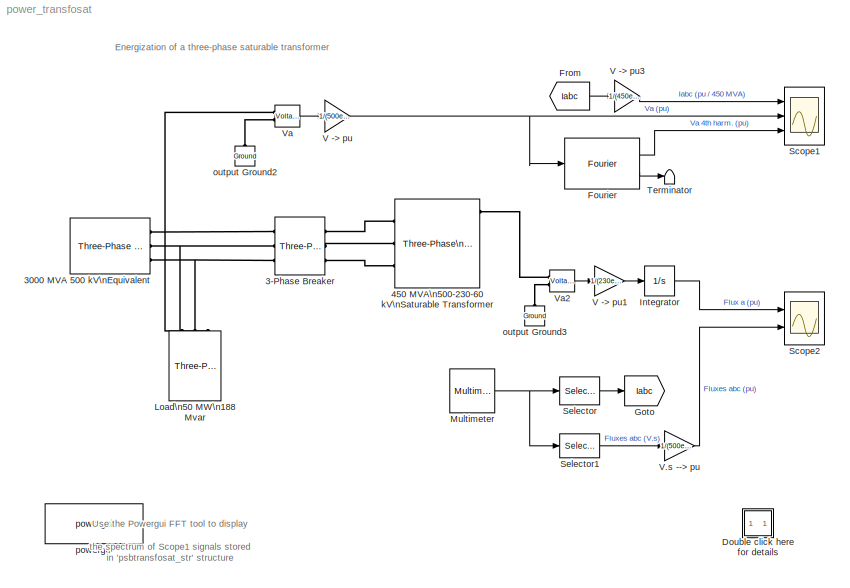
MODEL power_transfosat
KIND model
BLOCK [Reference] 3-Phase Breaker  REF=powerlib/Elements/Three-Phase Breaker
  AttributesFormatString = \\n
  BreakerResistance = 0.01
  External = off
  InitialState = open
  Measurements = Breaker currents
  Ports = [0, 0, 0, 0, 0, 3, 3]
  ShowPortLabels = on
  SnubberCapacitance = inf
  SnubberResistance = 100e6
  SourceBlock = powerlib/Elements/Three-Phase Breaker
  SourceType = Three-Phase Breaker
  SwitchA = on
  SwitchB = on
  SwitchC = on
  SwitchTimes = [0.05]
BLOCK [Reference] 3000 MVA  500 kV\nEquivalent  REF=powerlib/Electrical\nSources/Three-Phase Source
  BaseVoltage = 0
  Frequency = 60
  Inductance = 0.221
  InternalConnection = Yg
  PhaseAngle = 0
  Ports = [0, 0, 0, 0, 0, 0, 3]
  Resistance = 5.55
  ShortCircuitLevel = 0
  ShowPortLabels = on
  SourceBlock = powerlib/Electrical\nSources/Three-Phase Source
  SourceType = Three-Phase Source
  SpecifyImpedance = off
  Voltage = 500e3
  XRratio = 0
BLOCK [Reference] 450 MVA\n500-230-60 kV\nSaturable Transformer  REF=powerlib/Elements/Three-Phase\nTransformer\n(Three Windings)
  AttributesFormatString = \\n
  DataFile = 'hysteresis'
  Hysteresis = off
  InitialFluxes = [0.8 -0.4 0.4]
  Lm = 500
  Measurements = Fluxes and magnetization currents ( Imag )
  NominalPower = [ 450e6 , 60 ]
  Ports = [0, 0, 0, 0, 0, 3, 6]
  Rm = 500
  Saturation = [0 0; 0.0 1.2; 1.0  1.52]
  SetInitialFlux = on
  SetSaturation = on
  ShowPortLabels = on
  SourceBlock = powerlib/Elements/Three-Phase\nTransformer\n(Three Windings)
  SourceType = Three-Phase Transformer (Three Windings)
  TransfoNumber = 0
  Winding1 = [ 500e3 0.002 0.08 ]
  Winding1Connection = Yg
  Winding2 = [ 230e3 0.002 0.08]
  Winding2Connection = Yg
  Winding3 = [ 60e3 0.015 0.30]
  Winding3Connection = Delta (D1)
BLOCK [SubSystem] Double click here for details
  MaskDisplay = disp('?')
  MaskIconFrame = on
  MaskIconOpaque = on
  MaskIconRotate = none
  MaskIconUnits = autoscale
  MinAlgLoopOccurrences = off
  Ports = []
  RTWSystemCode = Auto
  TreatAsAtomicUnit = off
BLOCK [Reference] Fourier  REF=powerlib_extras/Measurements/Fourier
  Ports = [1, 2]
  ShowPortLabels = on
  SourceBlock = powerlib_extras/Measurements/Fourier
  SourceType = Fourier analyser
  f1 = 60
  n = 4
BLOCK [From] From
  CloseFcn = tagdialog Close
  DialogController = Simulink.DDGSource
  GotoTag = Iabc
BLOCK [Goto] Goto
  DialogController = Simulink.DDGSource
  GotoTag = Iabc
  TagVisibility = local
BLOCK [Integrator] Integrator
  InitialCondition = 0.8
  Ports = [1, 1]
  ZeroCross = off
BLOCK [Reference] Load\n50 MW\n188 Mvar  REF=powerlib/Elements/Three-Phase\nParallel RLC Load
  ActivePower = 50e6
  AttributesFormatString = \\n
  CapacitivePower = 188e6
  Configuration = Y (grounded)
  InductivePower = 0
  LConnTagsString = A|B|C
  LeftPortType = p1
  Measurements = None
  NominalFrequency = 60
  NominalVoltage = 500e3
  PhysicalDomain = powersysdomain
  Ports = [0, 0, 0, 0, 0, 3]
  RightPortType = p1
  SourceBlock = powerlib/Elements/Three-Phase\nParallel RLC Load
  SourceType = Three-Phase Parallel RLC Load
  SubClassName = unknown
BLOCK [Reference] Multimeter  REF=powerlib/Measurements/Multimeter
  AttributesFormatString = \\n
  AxesSetting = [0,0.1,-100,100]
  Display = 0
  Gain = [1 1 1 1 1 1]
  L = 9
  OutputType = Magnitude
  PSBOutputType = 1
  PSBequivalent = 0
  PhasorSimulation = off
  Ports = [0, 1]
  SavedBlockNames = {}
  ShowPortLabels = on
  SourceBlock = powerlib/Measurements/Multimeter
  SourceType = MultimeterPSB
  Tag = PoWeRsYsTeMmEaSuReMeNt
  sel = [3 2 1 7 8 9]
  yselected = {'Ib: 3-Phase Breaker/Breaker A','Ib: 3-Phase Breaker/Breaker B','Ib: 3-Phase Breaker/Breaker C','Flux_A: 450 MVA 500-230-60 kV Saturable Transformer','Flux_B: 450 MVA 500-230-60 kV Saturable Transformer','Flux_C: 450 MVA 500-230-60 kV Saturable Transformer'};
BLOCK [Scope] Scope1
  DataFormat = StructureWithTime
  LimitDataPoints = off
  NumInputPorts = 3
  Ports = [3]
  SampleInput = on
  SampleTime = 1/60/333
  SaveName = psbtransfosat_str
  SaveToWorkspace = on
  TimeRange = 0.5
  YMax = 3~1.25~0.25
  YMin = -1.5~-1.5~0.05
BLOCK [Scope] Scope2
  DataFormat = Structure
  LimitDataPoints = off
  NumInputPorts = 2
  Ports = [2]
  TimeRange = 0.5
  YMax = 3~3
  YMin = -1~-2
  ZoomMode = yonly
BLOCK [Selector] Selector
  Elements = 1:3
  InputPortWidth = 6
  Ports = [1, 1]
BLOCK [Selector] Selector1
  Elements = 4:6
  InputPortWidth = 6
  Ports = [1, 1]
BLOCK [Terminator] Terminator
BLOCK [Gain] V -> pu
  Gain = 1/(500e3/sqrt(3)*sqrt(2))
BLOCK [Gain] V -> pu1
  Gain = 1/(230e3/sqrt(3)*sqrt(2)/2/pi/60)
BLOCK [Gain] V -> pu3
  Gain = 1/(450e6/500e3/sqrt(3)*sqrt(2))
BLOCK [Gain] V.s --> pu
  Gain = 1/(500e3/sqrt(3)*sqrt(2)/2/pi/60)
BLOCK [Reference] Va  REF=powerlib/Measurements/Voltage Measurement
  AttributesFormatString = \\n
  OutputType = Magnitude
  PSBequivalent = 0
  PhasorSimulation = off
  Ports = [0, 1, 0, 0, 0, 2]
  ShowPortLabels = on
  SourceBlock = powerlib/Measurements/Voltage Measurement
  SourceType = Voltage Measurement
  Tag = PoWeRsYsTeMmEaSuReMeNt
BLOCK [Reference] Va2  REF=powerlib/Measurements/Voltage Measurement
  AttributesFormatString = \\n
  OutputType = Magnitude
  PSBequivalent = 0
  PhasorSimulation = off
  Ports = [0, 1, 0, 0, 0, 2]
  ShowPortLabels = on
  SourceBlock = powerlib/Measurements/Voltage Measurement
  SourceType = Voltage Measurement
  Tag = PoWeRsYsTeMmEaSuReMeNt
BLOCK [Reference] output Ground2  REF=powerlib/Elements/Ground
  AttributesFormatString = \\n
  LConnTagsString = a
  LeftPortType = p1
  PhysicalDomain = powersysdomain
  Ports = [0, 0, 0, 0, 0, 1]
  RightPortType = p1
  SourceBlock = powerlib/Elements/Ground
  SourceType = Ground
  SubClassName = unknown
BLOCK [Reference] output Ground3  REF=powerlib/Elements/Ground
  AttributesFormatString = \\n
  LConnTagsString = a
  LeftPortType = p1
  PhysicalDomain = powersysdomain
  Ports = [0, 0, 0, 0, 0, 1]
  RightPortType = p1
  SourceBlock = powerlib/Elements/Ground
  SourceType = Ground
  SubClassName = unknown
BLOCK [Reference] powergui  REF=powerlib/powergui
  DisplayStyle = 1
  Frange = logspace(0,3,50)
  FreqAxis = on
  MaxFrequency = 1000
  Ports = []
  Priority = 2
  RmsSteady = 1
  ShowPortLabels = on
  SourceBlock = powerlib/powergui
  SourceType = PSB option menu block
  StartTime = 0.32
  Ts = 0
  Xlog = off
  Ylog = off
  ZoomFFT = on
  cycles = 2
  display = off
  echomessages = on
  frequency = 60
  frequencyindice = 1
  frequencyindicesteady = 1
  fundamental = 60
  methode = off
  save = off
  structure = psbtransfosat_str
  variable = ZData
ANNOTATION (root): Energization of a three-phase saturable transformer
ANNOTATION (root): Use the Powergui FFT tool to display\nthe spectrum of Scope1 signals stored\nin 'psbtransfosat_str' structure
ANNOTATION Double click here for details: A three-phase transformer is energized on a 500 kV network. The transformer rated 450 MVA, 500 kV/230 kV/60 kV consists of three windings \nconnected in Y/Y/Delta.\n\nThe power system is simulated by an equivalent consisting of an inductive source (short-circuit power of 3000 MVA) and a parallel RC load.\nThe capacitor reactive power has been selected in order to produce a resonance at 240 Hz (4th...<+1149ch>
ANNOTATION Double click here for details: Circuit Description
ANNOTATION Double click here for details: Demonstration
ANNOTATION Double click here for details: G. Sybille (Hydro-Quebec)
ANNOTATION Double click here for details: Start the simulation and observe voltage, current and flux waveforms on Scope1 and Scope2.\n\nObserve the transformer inrush currents and overvoltage after breaker closing. Because of the 0.8 pu residual flux on phase A and breaker \nclosing at an instant causing maximum flux offset, the flux exceeds 2 pu on phase A. Compare the flux in phase A measured by the \nmultimeter (yellow trace on 2nd inp...<+841ch>
ANNOTATION Double click here for details: This demonstration illustrates use of Three-phase, Powergui, and Multimeter\nblocks to study transformer saturation phenomenon
LINE Fourier:1 -> Scope1:3
LINE Fourier:2 -> Terminator:1
LINE From:1 -> V -> pu3:1
LINE Integrator:1 -> Scope2:1
NET Multimeter:1 -> Selector1:1, Selector:1
LINE Selector1:1 -> V.s --> pu:1
LINE Selector:1 -> Goto:1
LINE V -> pu1:1 -> Integrator:1
LINE V -> pu3:1 -> Scope1:1
NET V -> pu:1 -> Fourier:1, Scope1:2
LINE V.s --> pu:1 -> Scope2:2
LINE Va2:1 -> V -> pu1:1
LINE Va:1 -> V -> pu:1
PNET net1: 3-Phase Breaker:LConn1 -- 3000 MVA  500 kV\nEquivalent:RConn1 -- Load\n50 MW\n188 Mvar:LConn1 -- Va:LConn1
PNET net2: 3-Phase Breaker:LConn2 -- 3000 MVA  500 kV\nEquivalent:RConn2 -- Load\n50 MW\n188 Mvar:LConn2
PNET net3: 3-Phase Breaker:LConn3 -- 3000 MVA  500 kV\nEquivalent:RConn3 -- Load\n50 MW\n188 Mvar:LConn3
PLINE 3-Phase Breaker:RConn1 -- 450 MVA\n500-230-60 kV\nSaturable Transformer:LConn1
PLINE 3-Phase Breaker:RConn2 -- 450 MVA\n500-230-60 kV\nSaturable Transformer:LConn2
PLINE 3-Phase Breaker:RConn3 -- 450 MVA\n500-230-60 kV\nSaturable Transformer:LConn3
PLINE 450 MVA\n500-230-60 kV\nSaturable Transformer:RConn1 -- Va2:LConn1
PLINE Va2:LConn2 -- output Ground3:LConn1
PLINE Va:LConn2 -- output Ground2:LConn1
note: NET lines group one-source signal fan-out (src -> all destinations, sorted); 1:1 wires keep LINE; PNET lines group multi-terminal physical nets as a canonical sorted terminal list (undirected conserving connections); 2-terminal nets keep the pairwise PLINE form
